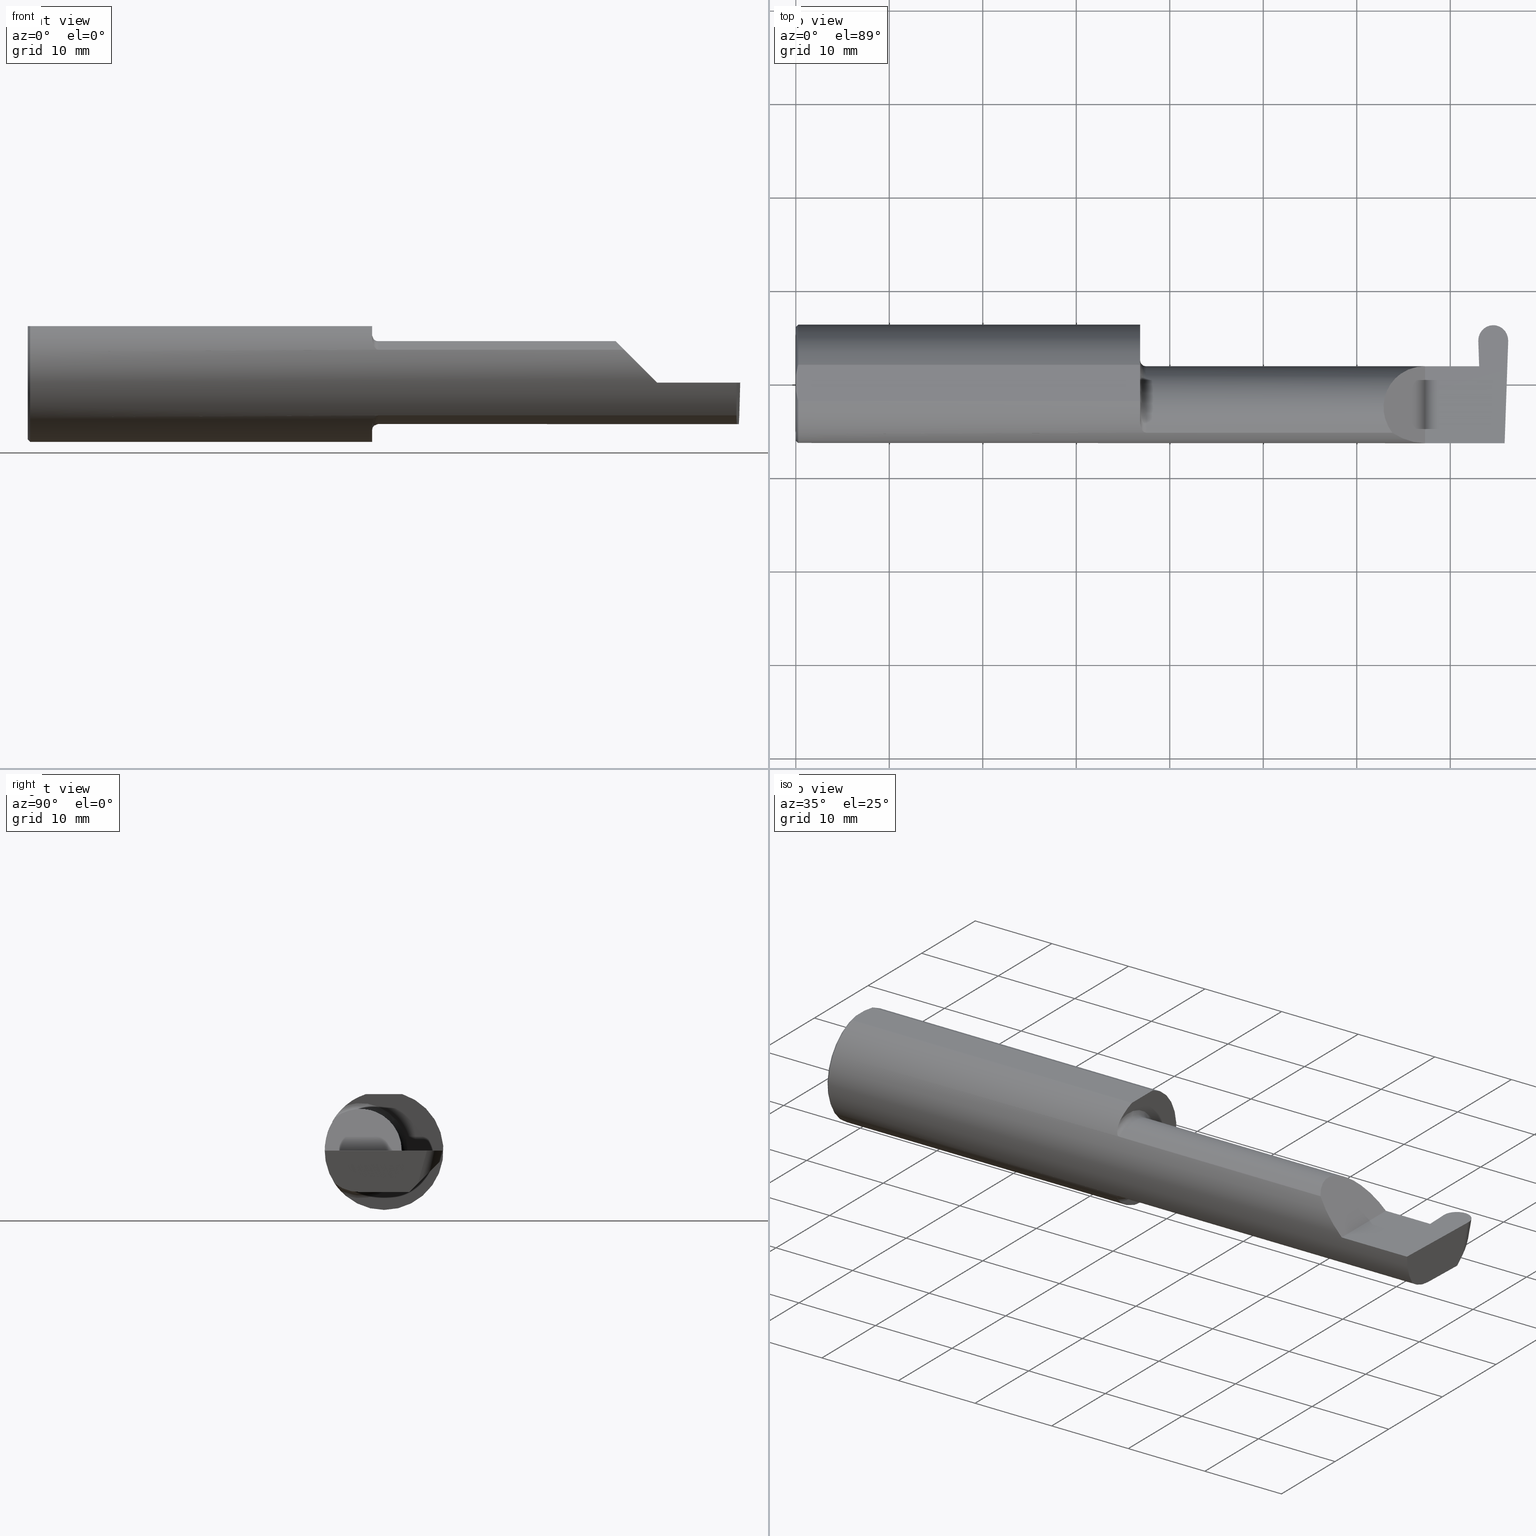
[diagram: canonical four-view strip — front | top / right | iso, engineering-drawing reading convention]
A machine part, canonical four-view strip (front | top / right | iso — engineering-drawing reading convention). The complete STEP part file that produces these views, byte-faithful:
ISO-10303-21;
HEADER;
FILE_DESCRIPTION (( 'STEP AP203' ),
    '1' );
FILE_NAME ('222482-GFR125-24.STEP',
    '2024-06-28T19:18:32',
    ( '' ),
    ( '' ),
    'SwSTEP 2.0',
    'SolidWorks 2024',
    '' );
FILE_SCHEMA (( 'CONFIG_CONTROL_DESIGN' ));
ENDSEC;

DATA;
#1 = CARTESIAN_POINT ( 'NONE',  ( 2.879499660824579976, 0.07056399972053264968, -0.1057442486376091589 ) ) ;
#2 = CARTESIAN_POINT ( 'NONE',  ( 2.935382123675520205, 0.1665992816037146218, -0.05720606541626471753 ) ) ;
#3 = ORIENTED_EDGE ( 'NONE', *, *, #646, .T. ) ;
#4 = DIRECTION ( 'NONE',  ( 0.000000000000000000, 0.000000000000000000, -1.000000000000000000 ) ) ;
#5 = DIRECTION ( 'NONE',  ( 0.000000000000000000, 0.000000000000000000, -1.000000000000000000 ) ) ;
#6 = ADVANCED_FACE ( 'NONE', ( #214 ), #466, .F. ) ;
#7 = VERTEX_POINT ( 'NONE', #416 ) ;
#8 = CARTESIAN_POINT ( 'NONE',  ( 1.474999999999999867, -0.2080850024789289709, 0.1382955322609668580 ) ) ;
#9 = AXIS2_PLACEMENT_3D ( 'NONE', #137, #246, #566 ) ;
#10 = CARTESIAN_POINT ( 'NONE',  ( 2.409263745716142768, -0.07597241004310682777, 0.2407362542838554220 ) ) ;
#11 = VERTEX_POINT ( 'NONE', #312 ) ;
#12 = CARTESIAN_POINT ( 'NONE',  ( 1.450000000000000178, -0.1616050818046604332, -0.1905487340154980169 ) ) ;
#13 = CARTESIAN_POINT ( 'NONE',  ( 2.936894315000000866, 0.2348176093011050958, -0.04600672784706324320 ) ) ;
#14 = ORIENTED_EDGE ( 'NONE', *, *, #464, .T. ) ;
#15 = CARTESIAN_POINT ( 'NONE',  ( 0.000000000000000000, 0.000000000000000000, 0.000000000000000000 ) ) ;
#16 = EDGE_CURVE ( 'NONE', #11, #535, #95, .T. ) ;
#17 = PLANE ( 'NONE',  #23 ) ;
#18 = CC_DESIGN_PERSON_AND_ORGANIZATION_ASSIGNMENT ( #468, #40, ( #485 ) ) ;
#19 = ORIENTED_EDGE ( 'NONE', *, *, #446, .T. ) ;
#20 = MANIFOLD_SOLID_BREP ( 'Radii', #326 ) ;
#21 = CARTESIAN_POINT ( 'NONE',  ( 1.458176740666625504, -0.1972027065478073882, -0.1535263573771914747 ) ) ;
#22 = CARTESIAN_POINT ( 'NONE',  ( 0.000000000000000000, 0.000000000000000000, 0.000000000000000000 ) ) ;
#23 = AXIS2_PLACEMENT_3D ( 'NONE', #404, #238, #24 ) ;
#24 = DIRECTION ( 'NONE',  ( -0.03489949670249505725, -0.9993908270190959842, 0.000000000000000000 ) ) ;
#25 = CC_DESIGN_PERSON_AND_ORGANIZATION_ASSIGNMENT ( #81, #554, ( #663 ) ) ;
#26 =( BOUNDED_CURVE ( )  B_SPLINE_CURVE ( 3, ( #378, #272, #57, #433 ),
 .UNSPECIFIED., .F., .F. ) 
 B_SPLINE_CURVE_WITH_KNOTS ( ( 4, 4 ),
 ( 4.712388980384689674, 5.298966915116347209 ),
 .UNSPECIFIED. ) 
 CURVE ( )  GEOMETRIC_REPRESENTATION_ITEM ( )  RATIONAL_B_SPLINE_CURVE ( ( 1.000000000000000000, 0.9715321379117538569, 0.9715321379117538569, 1.000000000000000000 ) ) 
 REPRESENTATION_ITEM ( '' )  );
#27 = LINE ( 'NONE', #287, #313 ) ;
#28 = DIRECTION ( 'NONE',  ( -1.000000000000000000, -5.995991820921354631E-17, -0.000000000000000000 ) ) ;
#29 = ADVANCED_FACE ( 'NONE', ( #308 ), #31, .F. ) ;
#30 = CARTESIAN_POINT ( 'NONE',  ( 0.000000000000000000, 0.000000000000000000, 0.000000000000000000 ) ) ;
#31 = PLANE ( 'NONE',  #210 ) ;
#32 = VECTOR ( 'NONE', #102, 39.37007874015748854 ) ;
#33 = VECTOR ( 'NONE', #491, 39.37007874015748143 ) ;
#34 = PLANE ( 'NONE',  #339 ) ;
#35 = DIRECTION ( 'NONE',  ( 0.000000000000000000, -0.7071067811865435759, -0.7071067811865514585 ) ) ;
#36 = SECURITY_CLASSIFICATION_LEVEL ( 'unclassified' ) ;
#37 = ADVANCED_FACE ( 'NONE', ( #420 ), #362, .F. ) ;
#38 = CARTESIAN_POINT ( 'NONE',  ( -0.002039370078740339320, 0.2471499999999999808, 0.000000000000000000 ) ) ;
#39 = CARTESIAN_POINT ( 'NONE',  ( 2.877587758332053269, 0.07414999999999977165, 0.000000000000000000 ) ) ;
#40 = PERSON_AND_ORGANIZATION_ROLE ( 'creator' ) ;
#41 = LINE ( 'NONE', #686, #281 ) ;
#42 = EDGE_LOOP ( 'NONE', ( #239, #111, #636 ) ) ;
#43 = AXIS2_PLACEMENT_3D ( 'NONE', #552, #58, #65 ) ;
#44 = EDGE_LOOP ( 'NONE', ( #226, #561, #417 ) ) ;
#45 = CC_DESIGN_APPROVAL ( #519, ( #203 ) ) ;
#46 = CARTESIAN_POINT ( 'NONE',  ( 2.872525856337140748, 0.2191039076196377999, 1.588360126375408623E-17 ) ) ;
#47 = EDGE_LOOP ( 'NONE', ( #54, #155, #474, #377, #99, #229 ) ) ;
#48 = CARTESIAN_POINT ( 'NONE',  ( 2.880805159919763270, -0.1008500000000000368, -0.1750000000000000444 ) ) ;
#49 = LINE ( 'NONE', #388, #556 ) ;
#50 = EDGE_CURVE ( 'NONE', #7, #259, #207, .T. ) ;
#51 = ORIENTED_EDGE ( 'NONE', *, *, #691, .F. ) ;
#52 = CARTESIAN_POINT ( 'NONE',  ( 3.402190948718818664, -0.1008499999999999674, -0.1750000000000000722 ) ) ;
#53 = CARTESIAN_POINT ( 'NONE',  ( 2.936894315000000422, 0.2425588618090795956, -0.01713436099308476498 ) ) ;
#54 = ORIENTED_EDGE ( 'NONE', *, *, #266, .T. ) ;
#55 = VECTOR ( 'NONE', #495, 39.37007874015748143 ) ;
#56 = VECTOR ( 'NONE', #520, 39.37007874015748854 ) ;
#57 = CARTESIAN_POINT ( 'NONE',  ( 2.552984868485332015, -0.2355204011147991883, 0.09701513151466749363 ) ) ;
#58 = DIRECTION ( 'NONE',  ( -1.000000000000000000, -5.995991820921354631E-17, -0.000000000000000000 ) ) ;
#59 = VERTEX_POINT ( 'NONE', #630 ) ;
#60 = CARTESIAN_POINT ( 'NONE',  ( 0.009999999999999856226, 0.07650098038587520299, 0.2378499999999998671 ) ) ;
#61 = EDGE_CURVE ( 'NONE', #11, #241, #405, .T. ) ;
#62 = DIRECTION ( 'NONE',  ( 0.000000000000000000, -1.000000000000000000, 0.000000000000000000 ) ) ;
#63 = VERTEX_POINT ( 'NONE', #690 ) ;
#64 = CARTESIAN_POINT ( 'NONE',  ( 2.881751263448093514, -2.813289441922686596, -0.1800126308514063134 ) ) ;
#65 = DIRECTION ( 'NONE',  ( 0.000000000000000000, -1.000000000000000000, 0.000000000000000000 ) ) ;
#66 = ORIENTED_EDGE ( 'NONE', *, *, #317, .T. ) ;
#67 = AXIS2_PLACEMENT_3D ( 'NONE', #305, #368, #587 ) ;
#68 = CARTESIAN_POINT ( 'NONE',  ( 1.462579853086618975, -0.2024300470081734638, -0.1464774911482685238 ) ) ;
#69 = VECTOR ( 'NONE', #142, 39.37007874015748143 ) ;
#70 = CARTESIAN_POINT ( 'NONE',  ( 2.999898068948996244, 0.1800238777770215015, 0.000000000000000000 ) ) ;
#71 = EDGE_CURVE ( 'NONE', #369, #575, #528, .T. ) ;
#72 = EDGE_LOOP ( 'NONE', ( #144, #334, #66, #300, #373, #482, #651, #612, #163, #202, #605, #255, #349 ) ) ;
#73 = DIRECTION ( 'NONE',  ( -0.03701744261649875939, -0.7066221440565400025, -0.7066221440565478851 ) ) ;
#74 = CARTESIAN_POINT ( 'NONE',  ( 2.984886542352623628, -0.2498499999999999888, 0.000000000000000000 ) ) ;
#75 = VERTEX_POINT ( 'NONE', #525 ) ;
#76 = EDGE_CURVE ( 'NONE', #550, #7, #634, .T. ) ;
#77 = APPROVAL_DATE_TIME ( #188, #519 ) ;
#78 = CARTESIAN_POINT ( 'NONE',  ( 2.873827072278243744, 0.1818419583544338691, 0.000000000000000000 ) ) ;
#79 = CARTESIAN_POINT ( 'NONE',  ( 1.458182335268384477, -0.1972192205116130859, 0.1535061413537210095 ) ) ;
#80 = APPROVAL_PERSON_ORGANIZATION ( #204, #290, #578 ) ;
#81 = PERSON_AND_ORGANIZATION ( #389, #693 ) ;
#82 = CARTESIAN_POINT ( 'NONE',  ( 2.879538164404315648, 0.1058243371481696893, -0.1750000000000001277 ) ) ;
#83 = EDGE_CURVE ( 'NONE', #274, #369, #513, .T. ) ;
#84 = APPROVAL_STATUS ( 'not_yet_approved' ) ;
#85 = CARTESIAN_POINT ( 'NONE',  ( 2.868840969551623932, 0.3100219863620841676, 0.02919764921391665435 ) ) ;
#86 = ORIENTED_EDGE ( 'NONE', *, *, #576, .T. ) ;
#87 = COORDINATED_UNIVERSAL_TIME_OFFSET ( 8, 0, .BEHIND. ) ;
#88 = CARTESIAN_POINT ( 'NONE',  ( 2.174394315000000244, -0.2080850024789289432, -0.1382955322609668858 ) ) ;
#89 = ORIENTED_EDGE ( 'NONE', *, *, #457, .T. ) ;
#90 = AXIS2_PLACEMENT_3D ( 'NONE', #180, #268, #601 ) ;
#91 = LOCAL_TIME ( 12, 18, 32.00000000000000000, #562 ) ;
#92 = DATE_AND_TIME ( #199, #473 ) ;
#93 = CC_DESIGN_DATE_AND_TIME_ASSIGNMENT ( #253, #632, ( #327 ) ) ;
#94 = FACE_OUTER_BOUND ( 'NONE', #42, .T. ) ;
#95 = LINE ( 'NONE', #521, #115 ) ;
#96 = APPROVAL_DATE_TIME ( #92, #290 ) ;
#97 = ADVANCED_FACE ( 'NONE', ( #423 ), #365, .F. ) ;
#98 = ORIENTED_EDGE ( 'NONE', *, *, #159, .T. ) ;
#99 = ORIENTED_EDGE ( 'NONE', *, *, #76, .T. ) ;
#100 = APPLICATION_CONTEXT ( 'configuration controlled 3d designs of mechanical parts and assemblies' ) ;
#101 = PLANE ( 'NONE',  #372 ) ;
#102 = DIRECTION ( 'NONE',  ( -0.02590004391968258463, -0.2587322210431824421, -0.9656017944882975268 ) ) ;
#103 = ORIENTED_EDGE ( 'NONE', *, *, #523, .F. ) ;
#104 = CONICAL_SURFACE ( 'NONE', #151, 0.2398500000000001742, 0.7853981633974466137 ) ;
#105 = FACE_OUTER_BOUND ( 'NONE', #286, .T. ) ;
#106 = VERTEX_POINT ( 'NONE', #221 ) ;
#107 =( BOUNDED_CURVE ( )  B_SPLINE_CURVE ( 3, ( #367, #695, #357, #153 ),
 .UNSPECIFIED., .F., .F. ) 
 B_SPLINE_CURVE_WITH_KNOTS ( ( 4, 4 ),
 ( 1.556556287886218692, 3.144255612008072021 ),
 .UNSPECIFIED. ) 
 CURVE ( )  GEOMETRIC_REPRESENTATION_ITEM ( )  RATIONAL_B_SPLINE_CURVE ( ( 1.000000000000000000, 0.8007369912750459395, 0.8007369912750459395, 1.000000000000000000 ) ) 
 REPRESENTATION_ITEM ( '' )  );
#108 = EDGE_LOOP ( 'NONE', ( #314, #471, #98, #599, #558 ) ) ;
#109 = DIRECTION ( 'NONE',  ( -0.000000000000000000, 1.000000000000000000, -0.000000000000000000 ) ) ;
#110 = CARTESIAN_POINT ( 'NONE',  ( 2.987538890366190802, -0.08637003105099157196, -0.1750000000000000722 ) ) ;
#111 = ORIENTED_EDGE ( 'NONE', *, *, #147, .T. ) ;
#112 = PLANE ( 'NONE',  #397 ) ;
#113 = CARTESIAN_POINT ( 'NONE',  ( 0.009999999999999856226, 0.000000000000000000, 0.000000000000000000 ) ) ;
#114 = ORIENTED_EDGE ( 'NONE', *, *, #464, .F. ) ;
#115 = VECTOR ( 'NONE', #409, 39.37007874015748143 ) ;
#116 = EDGE_CURVE ( 'NONE', #106, #424, #228, .T. ) ;
#117 = VECTOR ( 'NONE', #190, 39.37007874015748854 ) ;
#118 = CARTESIAN_POINT ( 'NONE',  ( 0.000000000000000000, 0.2498499999999998500, 0.2378499999999998671 ) ) ;
#119 = CARTESIAN_POINT ( 'NONE',  ( 2.511704467739032332, -0.2080850024789289432, 0.1382955322609668858 ) ) ;
#120 = ORIENTED_EDGE ( 'NONE', *, *, #193, .F. ) ;
#121 = ADVANCED_BREP_SHAPE_REPRESENTATION ( '222482-GFR125-24', ( #20, #211 ), #243 ) ;
#122 = DIRECTION ( 'NONE',  ( -1.000000000000000000, -0.000000000000000000, -0.000000000000000000 ) ) ;
#123 = LINE ( 'NONE', #230, #705 ) ;
#124 = EDGE_LOOP ( 'NONE', ( #608, #704, #342, #615 ) ) ;
#125 = CARTESIAN_POINT ( 'NONE',  ( 1.451385488563270432, -0.1808287530430325862, -0.1728790649396287071 ) ) ;
#126 = ADVANCED_FACE ( 'NONE', ( #165 ), #264, .T. ) ;
#127 = ORIENTED_EDGE ( 'NONE', *, *, #572, .F. ) ;
#128 =( BOUNDED_CURVE ( )  B_SPLINE_CURVE ( 3, ( #48, #370, #1, #480 ),
 .UNSPECIFIED., .F., .T. ) 
 B_SPLINE_CURVE_WITH_KNOTS ( ( 4, 4 ),
 ( 3.159045946109733105, 4.694935687864651541 ),
 .UNSPECIFIED. ) 
 CURVE ( )  GEOMETRIC_REPRESENTATION_ITEM ( )  RATIONAL_B_SPLINE_CURVE ( ( 1.000000000000000000, 0.8128932002257887035, 0.8128932002257887035, 1.000000000000000000 ) ) 
 REPRESENTATION_ITEM ( '' )  );
#129 = AXIS2_PLACEMENT_3D ( 'NONE', #549, #442, #62 ) ;
#130 = APPROVAL_STATUS ( 'not_yet_approved' ) ;
#131 = AXIS2_PLACEMENT_3D ( 'NONE', #176, #386, #606 ) ;
#132 = CARTESIAN_POINT ( 'NONE',  ( 0.000000000000000000, 0.03090954545120574992, 0.2378499999999998671 ) ) ;
#133 = EDGE_CURVE ( 'NONE', #575, #280, #660, .T. ) ;
#134 = VERTEX_POINT ( 'NONE', #438 ) ;
#135 = PERSON_AND_ORGANIZATION_ROLE ( 'creator' ) ;
#136 = DIRECTION ( 'NONE',  ( -0.0003154085283454420899, 0.9999999502587288980, -1.223178646569383192E-16 ) ) ;
#137 = CARTESIAN_POINT ( 'NONE',  ( 1.450000000000000178, 0.000000000000000000, 0.000000000000000000 ) ) ;
#138 = CARTESIAN_POINT ( 'NONE',  ( 2.936830367926423602, 0.1823443432594142322, 0.001555304651110661022 ) ) ;
#139 = EDGE_CURVE ( 'NONE', #396, #106, #611, .T. ) ;
#140 = CARTESIAN_POINT ( 'NONE',  ( 2.984591634083985756, -0.1771157075472506726, -0.1623092683844332140 ) ) ;
#141 = VECTOR ( 'NONE', #285, 39.37007874015748143 ) ;
#142 = DIRECTION ( 'NONE',  ( -0.000000000000000000, 1.000000000000000000, -0.000000000000000000 ) ) ;
#143 = ORIENTED_EDGE ( 'NONE', *, *, #470, .F. ) ;
#144 = ORIENTED_EDGE ( 'NONE', *, *, #497, .F. ) ;
#145 = DIRECTION ( 'NONE',  ( 0.000000000000000000, -0.2588190451025209615, -0.9659258262890682012 ) ) ;
#146 = ORIENTED_EDGE ( 'NONE', *, *, #376, .F. ) ;
#147 = EDGE_CURVE ( 'NONE', #575, #209, #49, .T. ) ;
#148 = DESIGN_CONTEXT ( 'detailed design', #100, 'design' ) ;
#149 = PLANE ( 'NONE',  #496 ) ;
#150 = CARTESIAN_POINT ( 'NONE',  ( 0.000000000000000000, 0.000000000000000000, 0.000000000000000000 ) ) ;
#151 = AXIS2_PLACEMENT_3D ( 'NONE', #645, #551, #164 ) ;
#152 = EDGE_CURVE ( 'NONE', #297, #673, #434, .T. ) ;
#153 = CARTESIAN_POINT ( 'NONE',  ( 2.936894315000000866, 0.2348176093011050958, -0.04600672784706324320 ) ) ;
#154 = DIRECTION ( 'NONE',  ( -0.01806954526206908801, 0.01744955702544859211, 0.9996844524616943506 ) ) ;
#155 = ORIENTED_EDGE ( 'NONE', *, *, #598, .T. ) ;
#156 = CARTESIAN_POINT ( 'NONE',  ( 0.000000000000000000, 0.000000000000000000, -0.2398500000000001742 ) ) ;
#157 = CARTESIAN_POINT ( 'NONE',  ( 2.877587758332053269, 0.07414999999999977165, 0.000000000000000000 ) ) ;
#158 = ORIENTED_EDGE ( 'NONE', *, *, #215, .T. ) ;
#159 = EDGE_CURVE ( 'NONE', #550, #355, #235, .T. ) ;
#160 = PLANE ( 'NONE',  #249 ) ;
#161 = EDGE_LOOP ( 'NONE', ( #236, #198, #571 ) ) ;
#162 = AXIS2_PLACEMENT_3D ( 'NONE', #22, #340, #293 ) ;
#163 = ORIENTED_EDGE ( 'NONE', *, *, #61, .T. ) ;
#164 = DIRECTION ( 'NONE',  ( 0.000000000000000000, 0.000000000000000000, -1.000000000000000000 ) ) ;
#165 = FACE_OUTER_BOUND ( 'NONE', #440, .T. ) ;
#166 = VERTEX_POINT ( 'NONE', #375 ) ;
#167 = CARTESIAN_POINT ( 'NONE',  ( 2.936894315000000866, 0.2348176093011050958, -0.04600672784706324320 ) ) ;
#168 = DIRECTION ( 'NONE',  ( -0.02590004391968258809, -0.2587322210431824976, -0.9656017944882975268 ) ) ;
#169 = EDGE_CURVE ( 'NONE', #432, #134, #379, .T. ) ;
#170 = ORIENTED_EDGE ( 'NONE', *, *, #116, .F. ) ;
#171 = DIRECTION ( 'NONE',  ( -0.7071067811865439090, 0.000000000000000000, -0.7071067811865511255 ) ) ;
#172 = DIRECTION ( 'NONE',  ( 0.000000000000000000, -1.000000000000000000, 0.000000000000000000 ) ) ;
#173 = ORIENTED_EDGE ( 'NONE', *, *, #133, .T. ) ;
#174 = AXIS2_PLACEMENT_3D ( 'NONE', #647, #481, #172 ) ;
#175 = CC_DESIGN_SECURITY_CLASSIFICATION ( #327, ( #485 ) ) ;
#176 = CARTESIAN_POINT ( 'NONE',  ( 1.450000000000000178, 0.2498499999999997945, 0.000000000000000000 ) ) ;
#177 = DIRECTION ( 'NONE',  ( 1.000000000000000000, -0.000000000000000000, -0.000000000000000000 ) ) ;
#178 = ORIENTED_EDGE ( 'NONE', *, *, #385, .F. ) ;
#179 = B_SPLINE_CURVE_WITH_KNOTS ( 'NONE', 3,
 ( #132, #348, #345, #289 ),
 .UNSPECIFIED., .F., .F.,
 ( 4, 4 ),
 ( 0.01593449416844770414, 0.01712021724825603733 ),
 .UNSPECIFIED. ) ;
#180 = CARTESIAN_POINT ( 'NONE',  ( 0.000000000000000000, 0.000000000000000000, 0.000000000000000000 ) ) ;
#181 = VERTEX_POINT ( 'NONE', #427 ) ;
#182 =( CONVERSION_BASED_UNIT ( 'INCH', #564 ) LENGTH_UNIT ( ) NAMED_UNIT ( #185 ) );
#183 = EDGE_CURVE ( 'NONE', #588, #429, #247, .T. ) ;
#184 = LINE ( 'NONE', #394, #282 ) ;
#185 = DIMENSIONAL_EXPONENTS ( 1.000000000000000000, 0.000000000000000000, 0.000000000000000000, 0.000000000000000000, 0.000000000000000000, 0.000000000000000000, 0.000000000000000000 ) ;
#186 = ORIENTED_EDGE ( 'NONE', *, *, #646, .F. ) ;
#187 = AXIS2_PLACEMENT_3D ( 'NONE', #639, #683, #628 ) ;
#188 = DATE_AND_TIME ( #668, #706 ) ;
#189 = VECTOR ( 'NONE', #689, 39.37007874015748143 ) ;
#190 = DIRECTION ( 'NONE',  ( 0.02590004391968258463, 0.2587322210431824421, 0.9656017944882975268 ) ) ;
#191 = DIRECTION ( 'NONE',  ( 0.000000000000000000, 0.9659258262890680902, -0.2588190451025209615 ) ) ;
#192 = LINE ( 'NONE', #624, #530 ) ;
#193 = EDGE_CURVE ( 'NONE', #241, #673, #291, .T. ) ;
#194 = DIRECTION ( 'NONE',  ( 1.000000000000000000, 0.000000000000000000, 0.000000000000000000 ) ) ;
#195 = CARTESIAN_POINT ( 'NONE',  ( 4.499279347985562423E-32, -0.2498499999999999610, 3.673940397442054938E-16 ) ) ;
#196 = CARTESIAN_POINT ( 'NONE',  ( -0.002039370078740339320, 0.1058243371481696476, -0.1750000000000001277 ) ) ;
#197 = AXIS2_PLACEMENT_3D ( 'NONE', #30, #248, #527 ) ;
#198 = ORIENTED_EDGE ( 'NONE', *, *, #76, .F. ) ;
#199 = CALENDAR_DATE ( 2024, 28, 6 ) ;
#200 = EDGE_CURVE ( 'NONE', #209, #369, #123, .T. ) ;
#201 = LINE ( 'NONE', #260, #69 ) ;
#202 = ORIENTED_EDGE ( 'NONE', *, *, #193, .T. ) ;
#203 = PRODUCT_DEFINITION ( 'UNKNOWN', '', #485, #148 ) ;
#204 = PERSON_AND_ORGANIZATION ( #389, #693 ) ;
#205 = FACE_OUTER_BOUND ( 'NONE', #124, .T. ) ;
#206 = ADVANCED_FACE ( 'NONE', ( #540 ), #658, .T. ) ;
#207 = LINE ( 'NONE', #157, #670 ) ;
#208 = FACE_OUTER_BOUND ( 'NONE', #595, .T. ) ;
#209 = VERTEX_POINT ( 'NONE', #333 ) ;
#210 = AXIS2_PLACEMENT_3D ( 'NONE', #580, #250, #35 ) ;
#211 = AXIS2_PLACEMENT_3D ( 'NONE', #15, #613, #194 ) ;
#212 = PERSON_AND_ORGANIZATION_ROLE ( 'classification_officer' ) ;
#213 = DIRECTION ( 'NONE',  ( -0.03489949670249371111, 0.9993908270190959842, 0.000000000000000000 ) ) ;
#214 = FACE_OUTER_BOUND ( 'NONE', #486, .T. ) ;
#215 = EDGE_CURVE ( 'NONE', #63, #583, #472, .T. ) ;
#216 = ORIENTED_EDGE ( 'NONE', *, *, #516, .T. ) ;
#217 = CARTESIAN_POINT ( 'NONE',  ( 2.873890561051005044, 0.1800238777770215848, 0.000000000000000000 ) ) ;
#218 = ORIENTED_EDGE ( 'NONE', *, *, #83, .T. ) ;
#219 = ORIENTED_EDGE ( 'NONE', *, *, #147, .F. ) ;
#220 = DIRECTION ( 'NONE',  ( 0.000000000000000000, 0.000000000000000000, 1.000000000000000000 ) ) ;
#221 = CARTESIAN_POINT ( 'NONE',  ( 2.650000000000000355, 0.07414999999999997982, 1.898202538678394994E-16 ) ) ;
#222 = ORIENTED_EDGE ( 'NONE', *, *, #71, .F. ) ;
#223 = DIRECTION ( 'NONE',  ( 1.000000000000000000, 0.000000000000000000, -0.000000000000000000 ) ) ;
#224 = ADVANCED_FACE ( 'NONE', ( #279 ), #709, .T. ) ;
#225 = DIRECTION ( 'NONE',  ( 0.000000000000000000, 0.9659258262890680902, -0.2588190451025209615 ) ) ;
#226 = ORIENTED_EDGE ( 'NONE', *, *, #139, .F. ) ;
#227 = CARTESIAN_POINT ( 'NONE',  ( 2.873878335184228305, 0.1801460098349875194, 0.0004558030455617943138 ) ) ;
#228 = LINE ( 'NONE', #276, #55 ) ;
#229 = ORIENTED_EDGE ( 'NONE', *, *, #50, .T. ) ;
#230 = CARTESIAN_POINT ( 'NONE',  ( -0.002039370078740339320, 0.2471499999999999808, 0.000000000000000000 ) ) ;
#231 = ORIENTED_EDGE ( 'NONE', *, *, #682, .T. ) ;
#232 = CIRCLE ( 'NONE', #9, 0.2498499999999999888 ) ;
#233 = CC_DESIGN_APPROVAL ( #395, ( #485 ) ) ;
#234 = CARTESIAN_POINT ( 'NONE',  ( 2.998974393477397804, 0.1959989092472247951, -0.08482542790094400875 ) ) ;
#235 = LINE ( 'NONE', #703, #350 ) ;
#236 = ORIENTED_EDGE ( 'NONE', *, *, #565, .T. ) ;
#237 = DIRECTION ( 'NONE',  ( 0.02590004391968223074, -0.2587322210431824976, -0.9656017944882975268 ) ) ;
#238 = DIRECTION ( 'NONE',  ( -0.9992386149554828290, 0.03489418134010775774, 0.01745240643728358798 ) ) ;
#239 = ORIENTED_EDGE ( 'NONE', *, *, #71, .T. ) ;
#240 = CARTESIAN_POINT ( 'NONE',  ( 2.983929579294953616, -0.2080850024789288599, -0.1382955322609668858 ) ) ;
#241 = VERTEX_POINT ( 'NONE', #431 ) ;
#242 = CYLINDRICAL_SURFACE ( 'NONE', #517, 0.06300000000000001432 ) ;
#243 =( GEOMETRIC_REPRESENTATION_CONTEXT ( 3 ) GLOBAL_UNCERTAINTY_ASSIGNED_CONTEXT ( ( #684 ) ) GLOBAL_UNIT_ASSIGNED_CONTEXT ( ( #182, #393, #398 ) ) REPRESENTATION_CONTEXT ( 'NONE', 'WORKASPACE' ) );
#244 = CARTESIAN_POINT ( 'NONE',  ( 2.866439859938323398, 0.07404339472834126079, -0.006107411922953013585 ) ) ;
#245 = EDGE_CURVE ( 'NONE', #63, #588, #656, .T. ) ;
#246 = DIRECTION ( 'NONE',  ( 1.000000000000000000, 5.995991820921354631E-17, 0.000000000000000000 ) ) ;
#247 = CIRCLE ( 'NONE', #129, 0.1750000000000000167 ) ;
#248 = DIRECTION ( 'NONE',  ( -1.000000000000000000, -0.000000000000000000, -0.000000000000000000 ) ) ;
#249 = AXIS2_PLACEMENT_3D ( 'NONE', #708, #171, #494 ) ;
#250 = DIRECTION ( 'NONE',  ( 0.000000000000000000, -0.7071067811865514585, 0.7071067811865435759 ) ) ;
#251 = CARTESIAN_POINT ( 'NONE',  ( 1.450000000000000178, -0.07650098038587527238, 0.2378499999999998671 ) ) ;
#252 = ORIENTED_EDGE ( 'NONE', *, *, #385, .T. ) ;
#253 = DATE_AND_TIME ( #518, #415 ) ;
#254 = LINE ( 'NONE', #88, #189 ) ;
#255 = ORIENTED_EDGE ( 'NONE', *, *, #288, .F. ) ;
#256 = LINE ( 'NONE', #156, #56 ) ;
#257 = ORIENTED_EDGE ( 'NONE', *, *, #169, .F. ) ;
#258 = EDGE_CURVE ( 'NONE', #553, #673, #179, .T. ) ;
#259 = VERTEX_POINT ( 'NONE', #567 ) ;
#260 = CARTESIAN_POINT ( 'NONE',  ( 2.650000000000000355, -0.2500000000000000555, 4.286263797015729199E-17 ) ) ;
#261 = CARTESIAN_POINT ( 'NONE',  ( 2.999898068948996244, 0.1800238777770215015, 0.000000000000000000 ) ) ;
#262 = ORIENTED_EDGE ( 'NONE', *, *, #691, .T. ) ;
#263 = CARTESIAN_POINT ( 'NONE',  ( 2.974284482021860576, 0.2341676052385947282, -0.04665673190957361077 ) ) ;
#264 = CYLINDRICAL_SURFACE ( 'NONE', #174, 0.1750000000000000444 ) ;
#265 = ORIENTED_EDGE ( 'NONE', *, *, #152, .T. ) ;
#266 = EDGE_CURVE ( 'NONE', #259, #309, #675, .T. ) ;
#267 = CARTESIAN_POINT ( 'NONE',  ( 2.996204691241262985, 0.1431283489340401394, -0.1376959882141292058 ) ) ;
#268 = DIRECTION ( 'NONE',  ( -1.000000000000000000, -0.000000000000000000, -0.000000000000000000 ) ) ;
#269 = APPROVAL_PERSON_ORGANIZATION ( #573, #395, #522 ) ;
#270 = ORIENTED_EDGE ( 'NONE', *, *, #623, .F. ) ;
#271 = EDGE_CURVE ( 'NONE', #7, #331, #192, .T. ) ;
#272 = CARTESIAN_POINT ( 'NONE',  ( 2.600434159100402987, -0.2498499999999999610, 0.04956584089959698708 ) ) ;
#273 = CARTESIAN_POINT ( 'NONE',  ( 2.936894315000000866, 0.2399798948975154222, -0.02675919653808110990 ) ) ;
#274 = VERTEX_POINT ( 'NONE', #70 ) ;
#275 = FACE_OUTER_BOUND ( 'NONE', #667, .T. ) ;
#276 = CARTESIAN_POINT ( 'NONE',  ( 1.450000000000000178, 0.07414999999999991043, 1.898202538678394994E-16 ) ) ;
#277 = ORIENTED_EDGE ( 'NONE', *, *, #572, .T. ) ;
#278 = CARTESIAN_POINT ( 'NONE',  ( 2.877587758332053269, 0.07414999999999977165, 0.000000000000000000 ) ) ;
#279 = FACE_OUTER_BOUND ( 'NONE', #338, .T. ) ;
#280 = VERTEX_POINT ( 'NONE', #13 ) ;
#281 = VECTOR ( 'NONE', #626, 39.37007874015748143 ) ;
#282 = VECTOR ( 'NONE', #136, 39.37007874015748854 ) ;
#283 = CARTESIAN_POINT ( 'NONE',  ( 1.474999999999999867, -0.2080850024789289709, 0.1382955322609668580 ) ) ;
#284 = ORIENTED_EDGE ( 'NONE', *, *, #139, .T. ) ;
#285 = DIRECTION ( 'NONE',  ( -0.03489949670249371805, 0.9993908270190959842, -0.000000000000000000 ) ) ;
#286 = EDGE_LOOP ( 'NONE', ( #366, #328, #265, #384, #127, #443 ) ) ;
#287 = CARTESIAN_POINT ( 'NONE',  ( 2.174394315000000244, -0.2080850024789289432, 0.1382955322609668858 ) ) ;
#288 = EDGE_CURVE ( 'NONE', #583, #297, #232, .T. ) ;
#289 = CARTESIAN_POINT ( 'NONE',  ( 0.009999999999999856226, 0.07650098038587520299, 0.2378499999999998671 ) ) ;
#290 = APPROVAL ( #84, 'UNSPECIFIED' ) ;
#291 = CIRCLE ( 'NONE', #692, 0.2498499999999999888 ) ;
#292 = AXIS2_PLACEMENT_3D ( 'NONE', #655, #600, #4 ) ;
#293 = DIRECTION ( 'NONE',  ( 0.000000000000000000, 0.000000000000000000, -1.000000000000000000 ) ) ;
#294 = ORIENTED_EDGE ( 'NONE', *, *, #258, .T. ) ;
#295 = CARTESIAN_POINT ( 'NONE',  ( 1.449999999999999734, -0.1716188362992554506, -0.1820560320165479640 ) ) ;
#296 = CARTESIAN_POINT ( 'NONE',  ( 2.985664738015655129, -0.1400387324517229082, -0.1750000000000000999 ) ) ;
#297 = VERTEX_POINT ( 'NONE', #450 ) ;
#298 = CALENDAR_DATE ( 2024, 28, 6 ) ;
#299 = CARTESIAN_POINT ( 'NONE',  ( 2.866439859938323398, 0.07404339472834126079, -0.006107411922953013585 ) ) ;
#300 = ORIENTED_EDGE ( 'NONE', *, *, #547, .T. ) ;
#301 = APPROVAL_STATUS ( 'not_yet_approved' ) ;
#302 = CARTESIAN_POINT ( 'NONE',  ( 2.936434725234540632, 0.2471499999999999808, 0.000000000000000000 ) ) ;
#303 = DIRECTION ( 'NONE',  ( 0.000000000000000000, 0.000000000000000000, -1.000000000000000000 ) ) ;
#304 = SHAPE_DEFINITION_REPRESENTATION ( #335, #121 ) ;
#305 = CARTESIAN_POINT ( 'NONE',  ( 0.009999999999999856226, 0.000000000000000000, 0.000000000000000000 ) ) ;
#306 = EDGE_CURVE ( 'NONE', #355, #432, #406, .T. ) ;
#307 = CARTESIAN_POINT ( 'NONE',  ( 0.009999999999999856226, -0.07650098038587520299, 0.2378499999999998671 ) ) ;
#308 = FACE_OUTER_BOUND ( 'NONE', #661, .T. ) ;
#309 = VERTEX_POINT ( 'NONE', #504 ) ;
#310 = PERSON_AND_ORGANIZATION_ROLE ( 'design_supplier' ) ;
#311 = CARTESIAN_POINT ( 'NONE',  ( 2.994250465595685640, 0.1058243371481696615, -0.1750000000000001277 ) ) ;
#312 = CARTESIAN_POINT ( 'NONE',  ( 0.009999999999999856226, -0.07650098038587520299, 0.2378499999999998671 ) ) ;
#313 = VECTOR ( 'NONE', #403, 39.37007874015748143 ) ;
#314 = ORIENTED_EDGE ( 'NONE', *, *, #635, .T. ) ;
#315 = DIRECTION ( 'NONE',  ( 0.000000000000000000, 1.000000000000000000, 0.000000000000000000 ) ) ;
#316 = ORIENTED_EDGE ( 'NONE', *, *, #435, .F. ) ;
#317 = EDGE_CURVE ( 'NONE', #166, #75, #337, .T. ) ;
#318 = VERTEX_POINT ( 'NONE', #669 ) ;
#319 =( BOUNDED_CURVE ( )  B_SPLINE_CURVE ( 3, ( #167, #263, #234, #267 ),
 .UNSPECIFIED., .F., .F. ) 
 B_SPLINE_CURVE_WITH_KNOTS ( ( 4, 4 ),
 ( 3.138929695171530643, 4.726629019293367762 ),
 .UNSPECIFIED. ) 
 CURVE ( )  GEOMETRIC_REPRESENTATION_ITEM ( )  RATIONAL_B_SPLINE_CURVE ( ( 1.000000000000000000, 0.8007369912750498253, 0.8007369912750498253, 1.000000000000000000 ) ) 
 REPRESENTATION_ITEM ( '' )  );
#320 = FACE_OUTER_BOUND ( 'NONE', #44, .T. ) ;
#321 = DIRECTION ( 'NONE',  ( 1.000000000000000000, 0.000000000000000000, 0.000000000000000000 ) ) ;
#322 = ADVANCED_FACE ( 'NONE', ( #666 ), #680, .T. ) ;
#323 = ORIENTED_EDGE ( 'NONE', *, *, #497, .T. ) ;
#324 = DIRECTION ( 'NONE',  ( 0.02590004391968223421, -0.2587322210431824421, -0.9656017944882974158 ) ) ;
#325 = CARTESIAN_POINT ( 'NONE',  ( 1.450000000000000622, -0.1665641037263010382, 0.1863429692936361681 ) ) ;
#326 = CLOSED_SHELL ( 'NONE', ( #322, #412, #206, #585, #37, #618, #6, #627, #425, #126, #676, #97, #534, #29, #488, #341, #671, #224, #707 ) ) ;
#327 = SECURITY_CLASSIFICATION ( '', '', #36 ) ;
#328 = ORIENTED_EDGE ( 'NONE', *, *, #623, .T. ) ;
#329 = CARTESIAN_POINT ( 'NONE',  ( 3.501298404146671484, 0.2498499999999998500, 0.2378499999999998671 ) ) ;
#330 = DIRECTION ( 'NONE',  ( 0.000000000000000000, -1.000000000000000000, 1.223176342469858371E-16 ) ) ;
#331 = VERTEX_POINT ( 'NONE', #244 ) ;
#332 = PLANE ( 'NONE',  #131 ) ;
#333 = CARTESIAN_POINT ( 'NONE',  ( 2.936434725234540632, 0.2471499999999999808, 0.000000000000000000 ) ) ;
#334 = ORIENTED_EDGE ( 'NONE', *, *, #376, .T. ) ;
#335 = PRODUCT_DEFINITION_SHAPE ( 'NONE', 'NONE',  #203 ) ;
#336 = APPLICATION_PROTOCOL_DEFINITION ( 'international standard', 'config_control_design', 1994, #569 ) ;
#337 = LINE ( 'NONE', #195, #622 ) ;
#338 = EDGE_LOOP ( 'NONE', ( #178, #602, #462, #222, #643 ) ) ;
#339 = AXIS2_PLACEMENT_3D ( 'NONE', #38, #586, #145 ) ;
#340 = DIRECTION ( 'NONE',  ( 1.000000000000000000, 0.000000000000000000, 0.000000000000000000 ) ) ;
#341 = ADVANCED_FACE ( 'NONE', ( #509 ), #17, .F. ) ;
#342 = ORIENTED_EDGE ( 'NONE', *, *, #701, .T. ) ;
#343 = CC_DESIGN_PERSON_AND_ORGANIZATION_ASSIGNMENT ( #526, #212, ( #327 ) ) ;
#344 = PERSON_AND_ORGANIZATION ( #389, #693 ) ;
#345 = CARTESIAN_POINT ( 'NONE',  ( 0.005466242398876384675, 0.06169385855649840017, 0.2378499999999998671 ) ) ;
#346 = EDGE_CURVE ( 'NONE', #181, #134, #592, .T. ) ;
#347 = FACE_OUTER_BOUND ( 'NONE', #479, .T. ) ;
#348 = CARTESIAN_POINT ( 'NONE',  ( 0.002005502345409059580, 0.04647171987093979412, 0.2378499999999998671 ) ) ;
#349 = ORIENTED_EDGE ( 'NONE', *, *, #701, .F. ) ;
#350 = VECTOR ( 'NONE', #382, 39.37007874015748854 ) ;
#351 =( LENGTH_UNIT ( ) NAMED_UNIT ( * ) SI_UNIT ( $, .METRE. ) );
#352 = CARTESIAN_POINT ( 'NONE',  ( 2.987033238708274752, -0.1008499999999999674, -0.1750000000000000722 ) ) ;
#353 = B_SPLINE_CURVE_WITH_KNOTS ( 'NONE', 3,
 ( #441, #445, #454, #401, #620, #559, #68, #21, #609, #125, #295, #12 ),
 .UNSPECIFIED., .F., .F.,
 ( 4, 2, 2, 2, 2, 4 ),
 ( 1.964491429041408615E-07, 0.0001260981470478281219, 0.0002519998449527520641, 0.0005038032407626139887, 0.001007410032382337946, 0.002014623615621791066 ),
 .UNSPECIFIED. ) ;
#354 = DIRECTION ( 'NONE',  ( -1.000000000000000000, -5.995991820921354631E-17, -0.000000000000000000 ) ) ;
#355 = VERTEX_POINT ( 'NONE', #82 ) ;
#356 = DATE_TIME_ROLE ( 'creation_date' ) ;
#357 = CARTESIAN_POINT ( 'NONE',  ( 2.899504147978140267, 0.2341676052385956164, -0.04665673190957269484 ) ) ;
#358 = ORIENTED_EDGE ( 'NONE', *, *, #116, .T. ) ;
#359 = VECTOR ( 'NONE', #154, 39.37007874015748143 ) ;
#360 = CARTESIAN_POINT ( 'NONE',  ( 2.877587758332053269, 0.07414999999999977165, 0.000000000000000000 ) ) ;
#361 = LOCAL_TIME ( 12, 18, 32.00000000000000000, #418 ) ;
#362 = PLANE ( 'NONE',  #187 ) ;
#363 = EDGE_CURVE ( 'NONE', #696, #550, #184, .T. ) ;
#364 = LINE ( 'NONE', #85, #557 ) ;
#365 = PLANE ( 'NONE',  #459 ) ;
#366 = ORIENTED_EDGE ( 'NONE', *, *, #16, .T. ) ;
#367 = CARTESIAN_POINT ( 'NONE',  ( 2.877583938758737858, 0.1431283489340402504, -0.1376959882141291225 ) ) ;
#368 = DIRECTION ( 'NONE',  ( 1.000000000000000000, 0.000000000000000000, 0.000000000000000000 ) ) ;
#369 = VERTEX_POINT ( 'NONE', #455 ) ;
#370 = CARTESIAN_POINT ( 'NONE',  ( 2.880773714454435197, -0.001152430219572236555, -0.1750000000000000722 ) ) ;
#371 = ORIENTED_EDGE ( 'NONE', *, *, #542, .T. ) ;
#372 = AXIS2_PLACEMENT_3D ( 'NONE', #360, #461, #422 ) ;
#373 = ORIENTED_EDGE ( 'NONE', *, *, #682, .F. ) ;
#374 = LINE ( 'NONE', #702, #33 ) ;
#375 = CARTESIAN_POINT ( 'NONE',  ( 2.984886542352623628, -0.2498499999999999888, 0.000000000000000000 ) ) ;
#376 = EDGE_CURVE ( 'NONE', #181, #166, #463, .T. ) ;
#377 = ORIENTED_EDGE ( 'NONE', *, *, #159, .F. ) ;
#378 = CARTESIAN_POINT ( 'NONE',  ( 2.650000000000000355, -0.2498499999999999610, 4.286263797015729199E-17 ) ) ;
#379 = LINE ( 'NONE', #110, #604 ) ;
#380 = ORIENTED_EDGE ( 'NONE', *, *, #502, .F. ) ;
#381 = PLANE ( 'NONE',  #644 ) ;
#382 = DIRECTION ( 'NONE',  ( -0.03489949670249371111, 0.9993908270190959842, -1.222058880457094394E-16 ) ) ;
#383 = APPROVAL_PERSON_ORGANIZATION ( #344, #519, #511 ) ;
#384 = ORIENTED_EDGE ( 'NONE', *, *, #258, .F. ) ;
#385 = EDGE_CURVE ( 'NONE', #59, #274, #399, .T. ) ;
#386 = DIRECTION ( 'NONE',  ( 1.000000000000000000, 5.995991820921354631E-17, 0.000000000000000000 ) ) ;
#387 = PRODUCT_RELATED_PRODUCT_CATEGORY ( 'detail', '', ( #663 ) ) ;
#388 = CARTESIAN_POINT ( 'NONE',  ( 2.934463560741512822, 0.2668412317563639835, 0.07348867737836418945 ) ) ;
#389 = PERSON ( 'UNSPECIFIED', 'UNSPECIFIED', 'UNSPECIFIED', ('UNSPECIFIED'), ('UNSPECIFIED'), ('UNSPECIFIED') ) ;
#390 = ORIENTED_EDGE ( 'NONE', *, *, #598, .F. ) ;
#391 = CARTESIAN_POINT ( 'NONE',  ( 2.936894315000000866, 0.2373994449183843558, -0.03638343994947537685 ) ) ;
#392 = ORIENTED_EDGE ( 'NONE', *, *, #565, .F. ) ;
#393 =( NAMED_UNIT ( * ) PLANE_ANGLE_UNIT ( ) SI_UNIT ( $, .RADIAN. ) );
#394 = CARTESIAN_POINT ( 'NONE',  ( 2.880805211788545428, -0.1010144495161653666, -0.1750000000000000722 ) ) ;
#395 = APPROVAL ( #301, 'UNSPECIFIED' ) ;
#396 = VERTEX_POINT ( 'NONE', #617 ) ;
#397 = AXIS2_PLACEMENT_3D ( 'NONE', #64, #543, #536 ) ;
#398 =( NAMED_UNIT ( * ) SI_UNIT ( $, .STERADIAN. ) SOLID_ANGLE_UNIT ( ) );
#399 = LINE ( 'NONE', #614, #117 ) ;
#400 = EDGE_CURVE ( 'NONE', #355, #515, #364, .T. ) ;
#401 = CARTESIAN_POINT ( 'NONE',  ( 1.468863362722770294, -0.2068301641248769251, -0.1401678546132361924 ) ) ;
#402 = CARTESIAN_POINT ( 'NONE',  ( 1.473329956043142319, -0.2080850024798589770, 0.1382955322595676717 ) ) ;
#403 = DIRECTION ( 'NONE',  ( 1.000000000000000000, 5.995991820921354631E-17, 0.000000000000000000 ) ) ;
#404 = CARTESIAN_POINT ( 'NONE',  ( 2.999961557721757099, 0.1818419583544338969, 0.000000000000000000 ) ) ;
#405 = CIRCLE ( 'NONE', #67, 0.2498499999999999888 ) ;
#406 = LINE ( 'NONE', #196, #451 ) ;
#407 = ORIENTED_EDGE ( 'NONE', *, *, #662, .T. ) ;
#408 = CARTESIAN_POINT ( 'NONE',  ( 2.898657552142794636, 0.2471500000000000918, 1.268339150128550293E-17 ) ) ;
#409 = DIRECTION ( 'NONE',  ( 1.000000000000000000, 0.000000000000000000, 0.000000000000000000 ) ) ;
#410 = FACE_OUTER_BOUND ( 'NONE', #47, .T. ) ;
#411 = DIRECTION ( 'NONE',  ( -0.01806954526206908801, 0.01744955702544859211, 0.9996844524616943506 ) ) ;
#412 = ADVANCED_FACE ( 'NONE', ( #208 ), #101, .F. ) ;
#413 = AXIS2_PLACEMENT_3D ( 'NONE', #150, #687, #303 ) ;
#414 = CARTESIAN_POINT ( 'NONE',  ( 0.000000000000000000, 0.000000000000000000, -0.2398500000000001742 ) ) ;
#415 = LOCAL_TIME ( 12, 18, 32.00000000000000000, #87 ) ;
#416 = CARTESIAN_POINT ( 'NONE',  ( 2.877698151322465314, 0.07404339472834124691, -0.006107411922953761250 ) ) ;
#417 = ORIENTED_EDGE ( 'NONE', *, *, #435, .T. ) ;
#418 = COORDINATED_UNIVERSAL_TIME_OFFSET ( 8, 0, .BEHIND. ) ;
#419 = DIRECTION ( 'NONE',  ( 5.995991820921354631E-17, -1.000000000000000000, 0.000000000000000000 ) ) ;
#420 = FACE_OUTER_BOUND ( 'NONE', #529, .T. ) ;
#421 = EDGE_LOOP ( 'NONE', ( #114, #505, #493, #19 ) ) ;
#422 = DIRECTION ( 'NONE',  ( 0.000000000000000000, -0.01745240643728358451, -0.9998476951563912696 ) ) ;
#423 = FACE_OUTER_BOUND ( 'NONE', #108, .T. ) ;
#424 = VERTEX_POINT ( 'NONE', #477 ) ;
#425 = ADVANCED_FACE ( 'NONE', ( #205 ), #453, .F. ) ;
#426 = FACE_OUTER_BOUND ( 'NONE', #594, .T. ) ;
#427 = CARTESIAN_POINT ( 'NONE',  ( 2.983929579294953616, -0.2080850024789288599, -0.1382955322609668858 ) ) ;
#428 = AXIS2_PLACEMENT_3D ( 'NONE', #590, #548, #315 ) ;
#429 = VERTEX_POINT ( 'NONE', #574 ) ;
#430 = FACE_OUTER_BOUND ( 'NONE', #161, .T. ) ;
#431 = CARTESIAN_POINT ( 'NONE',  ( 0.009999999999999856226, 0.000000000000000000, -0.2498499999999999888 ) ) ;
#432 = VERTEX_POINT ( 'NONE', #311 ) ;
#433 = CARTESIAN_POINT ( 'NONE',  ( 2.511704467739032332, -0.2080850024789289432, 0.1382955322609668858 ) ) ;
#434 = LINE ( 'NONE', #484, #657 ) ;
#435 = EDGE_CURVE ( 'NONE', #75, #106, #201, .T. ) ;
#436 = ORIENTED_EDGE ( 'NONE', *, *, #183, .F. ) ;
#437 = DIRECTION ( 'NONE',  ( 1.000000000000000000, -0.000000000000000000, -0.000000000000000000 ) ) ;
#438 = CARTESIAN_POINT ( 'NONE',  ( 2.987033238708274752, -0.1008499999999999674, -0.1750000000000000722 ) ) ;
#439 = CC_DESIGN_APPROVAL ( #290, ( #327 ) ) ;
#440 = EDGE_LOOP ( 'NONE', ( #323, #436, #231, #284, #358, #700, #648, #392, #665, #710 ) ) ;
#441 = CARTESIAN_POINT ( 'NONE',  ( 1.474999999999999867, -0.2080850024789289987, -0.1382955322609668025 ) ) ;
#442 = DIRECTION ( 'NONE',  ( -1.000000000000000000, -5.995991820921354631E-17, -0.000000000000000000 ) ) ;
#443 = ORIENTED_EDGE ( 'NONE', *, *, #446, .F. ) ;
#444 = B_SPLINE_CURVE_WITH_KNOTS ( 'NONE', 3,
 ( #307, #531, #698, #579 ),
 .UNSPECIFIED., .F., .F.,
 ( 4, 4 ),
 ( 0.01317593029100230795, 0.01435802289191462008 ),
 .UNSPECIFIED. ) ;
#445 = CARTESIAN_POINT ( 'NONE',  ( 1.473318040126429196, -0.2080850024789288599, -0.1382955322609669413 ) ) ;
#446 = EDGE_CURVE ( 'NONE', #11, #318, #444, .T. ) ;
#447 = CARTESIAN_POINT ( 'NONE',  ( 2.983929579294953616, -0.2080850024789288599, -0.1382955322609668858 ) ) ;
#448 = ORIENTED_EDGE ( 'NONE', *, *, #576, .F. ) ;
#449 = APPLICATION_PROTOCOL_DEFINITION ( 'international standard', 'config_control_design', 1994, #100 ) ;
#450 = CARTESIAN_POINT ( 'NONE',  ( 1.450000000000000178, 0.07650098038587520299, 0.2378499999999998671 ) ) ;
#451 = VECTOR ( 'NONE', #679, 39.37007874015748143 ) ;
#452 = ORIENTED_EDGE ( 'NONE', *, *, #317, .F. ) ;
#453 = TOROIDAL_SURFACE ( 'NONE', #589, 0.1999999999999999556, 0.02499999999999994241 ) ;
#454 = CARTESIAN_POINT ( 'NONE',  ( 1.471700027347579320, -0.2077785947292767332, -0.1387580622202826963 ) ) ;
#455 = CARTESIAN_POINT ( 'NONE',  ( 2.937353904765460211, 0.2471499999999999808, 0.000000000000000000 ) ) ;
#456 = MECHANICAL_CONTEXT ( 'NONE', #569, 'mechanical' ) ;
#457 = EDGE_CURVE ( 'NONE', #331, #424, #593, .T. ) ;
#458 = CARTESIAN_POINT ( 'NONE',  ( 2.983692505346974944, -0.2355204011147991883, -0.09701513151466779894 ) ) ;
#459 = AXIS2_PLACEMENT_3D ( 'NONE', #642, #653, #330 ) ;
#460 = CIRCLE ( 'NONE', #197, 0.2398500000000001742 ) ;
#461 = DIRECTION ( 'NONE',  ( 0.000000000000000000, -0.9998476951563912696, 0.01745240643728358451 ) ) ;
#462 = ORIENTED_EDGE ( 'NONE', *, *, #133, .F. ) ;
#463 =( BOUNDED_CURVE ( )  B_SPLINE_CURVE ( 3, ( #240, #458, #560, #74 ),
 .UNSPECIFIED., .F., .T. ) 
 B_SPLINE_CURVE_WITH_KNOTS ( ( 4, 4 ),
 ( 6.160376845738953833, 6.746954780470613144 ),
 .UNSPECIFIED. ) 
 CURVE ( )  GEOMETRIC_REPRESENTATION_ITEM ( )  RATIONAL_B_SPLINE_CURVE ( ( 1.000000000000000000, 0.9715321379117536349, 0.9715321379117536349, 1.000000000000000000 ) ) 
 REPRESENTATION_ITEM ( '' )  );
#464 = EDGE_CURVE ( 'NONE', #510, #318, #460, .T. ) ;
#465 = CARTESIAN_POINT ( 'NONE',  ( 2.866475395028876161, 0.07407892981889409312, -0.004071607948635345281 ) ) ;
#466 = PLANE ( 'NONE',  #413 ) ;
#467 = CC_DESIGN_PERSON_AND_ORGANIZATION_ASSIGNMENT ( #685, #310, ( #485 ) ) ;
#468 = PERSON_AND_ORGANIZATION ( #389, #693 ) ;
#469 = DIRECTION ( 'NONE',  ( 0.9992386149554828290, 0.03489418134010641159, 0.01745240643728358798 ) ) ;
#470 = EDGE_CURVE ( 'NONE', #274, #166, #41, .T. ) ;
#471 = ORIENTED_EDGE ( 'NONE', *, *, #363, .T. ) ;
#472 = CIRCLE ( 'NONE', #43, 0.1999999999999999556 ) ;
#473 = LOCAL_TIME ( 12, 18, 32.00000000000000000, #584 ) ;
#474 = ORIENTED_EDGE ( 'NONE', *, *, #400, .F. ) ;
#475 = ORIENTED_EDGE ( 'NONE', *, *, #470, .T. ) ;
#476 = CC_DESIGN_DATE_AND_TIME_ASSIGNMENT ( #694, #356, ( #203 ) ) ;
#477 = CARTESIAN_POINT ( 'NONE',  ( 2.866546465209982131, 0.07414999999999977165, 0.000000000000000000 ) ) ;
#478 = CARTESIAN_POINT ( 'NONE',  ( 3.001262773662860095, 0.2191039076196378277, -7.880140344815818546E-18 ) ) ;
#479 = EDGE_LOOP ( 'NONE', ( #380, #219, #173, #697, #390 ) ) ;
#480 = CARTESIAN_POINT ( 'NONE',  ( 2.877698151322465314, 0.07404339472834124691, -0.006107411922953761250 ) ) ;
#481 = DIRECTION ( 'NONE',  ( -1.000000000000000000, -5.995991820921354631E-17, -0.000000000000000000 ) ) ;
#482 = ORIENTED_EDGE ( 'NONE', *, *, #245, .F. ) ;
#483 = CARTESIAN_POINT ( 'NONE',  ( 2.936894315000000422, 0.2425588618090795956, -0.01713436099308476498 ) ) ;
#484 = CARTESIAN_POINT ( 'NONE',  ( 0.000000000000000000, 0.07650098038587520299, 0.2378499999999998671 ) ) ;
#485 = PRODUCT_DEFINITION_FORMATION_WITH_SPECIFIED_SOURCE ( 'ANY', '', #663, .NOT_KNOWN. ) ;
#486 = EDGE_LOOP ( 'NONE', ( #277, #3, #14 ) ) ;
#487 = CARTESIAN_POINT ( 'NONE',  ( 2.880750926882964524, 0.07109536363756167876, -0.1750000000000000722 ) ) ;
#488 = ADVANCED_FACE ( 'NONE', ( #410 ), #149, .F. ) ;
#489 = CARTESIAN_POINT ( 'NONE',  ( 1.451849548162864600, -0.1805300287242673496, 0.1728462070311780896 ) ) ;
#490 = ORIENTED_EDGE ( 'NONE', *, *, #502, .T. ) ;
#491 = DIRECTION ( 'NONE',  ( -5.995991820921354631E-17, 1.000000000000000000, 0.000000000000000000 ) ) ;
#492 = CARTESIAN_POINT ( 'NONE',  ( 2.650000000000000355, 0.07414999999999997982, 1.898202538678394994E-16 ) ) ;
#493 = ORIENTED_EDGE ( 'NONE', *, *, #61, .F. ) ;
#494 = DIRECTION ( 'NONE',  ( -0.7071067811865511255, 0.000000000000000000, 0.7071067811865439090 ) ) ;
#495 = DIRECTION ( 'NONE',  ( 1.000000000000000000, 5.995991820921354631E-17, 0.000000000000000000 ) ) ;
#496 = AXIS2_PLACEMENT_3D ( 'NONE', #524, #469, #213 ) ;
#497 = EDGE_CURVE ( 'NONE', #181, #429, #254, .T. ) ;
#498 = EDGE_LOOP ( 'NONE', ( #51, #252, #475, #146, #625, #257 ) ) ;
#499 = CARTESIAN_POINT ( 'NONE',  ( 2.996893271351730004, 0.1562725836412660607, -0.1245517535069031456 ) ) ;
#500 = CARTESIAN_POINT ( 'NONE',  ( 1.464343523383978996, -0.2041337200786082218, 0.1440846171672512943 ) ) ;
#501 = ORIENTED_EDGE ( 'NONE', *, *, #306, .F. ) ;
#502 = EDGE_CURVE ( 'NONE', #209, #309, #681, .T. ) ;
#503 = COORDINATED_UNIVERSAL_TIME_OFFSET ( 8, 0, .BEHIND. ) ;
#504 = CARTESIAN_POINT ( 'NONE',  ( 2.873890561051005044, 0.1800238777770215848, 0.000000000000000000 ) ) ;
#505 = ORIENTED_EDGE ( 'NONE', *, *, #523, .T. ) ;
#506 = CARTESIAN_POINT ( 'NONE',  ( 2.880805159919763270, -0.1008500000000000368, -0.1750000000000000444 ) ) ;
#507 = CARTESIAN_POINT ( 'NONE',  ( 1.456159563508734101, -0.1933019864360848994, 0.1584298865564832681 ) ) ;
#508 = CIRCLE ( 'NONE', #292, 0.2398500000000001742 ) ;
#509 = FACE_OUTER_BOUND ( 'NONE', #498, .T. ) ;
#510 = VERTEX_POINT ( 'NONE', #414 ) ;
#511 = APPROVAL_ROLE ( '' ) ;
#512 = CARTESIAN_POINT ( 'NONE',  ( 1.452968662030528879, -0.1849684355203377595, 0.1680843977756267815 ) ) ;
#513 =( BOUNDED_CURVE ( )  B_SPLINE_CURVE ( 3, ( #261, #478, #582, #699 ),
 .UNSPECIFIED., .F., .T. ) 
 B_SPLINE_CURVE_WITH_KNOTS ( ( 4, 4 ),
 ( 1.637964922114650168, 3.237953570749840804 ),
 .UNSPECIFIED. ) 
 CURVE ( )  GEOMETRIC_REPRESENTATION_ITEM ( )  RATIONAL_B_SPLINE_CURVE ( ( 1.000000000000000000, 0.7978071872141910825, 0.7978071872141910825, 1.000000000000000000 ) ) 
 REPRESENTATION_ITEM ( '' )  );
#514 = CARTESIAN_POINT ( 'NONE',  ( 2.866546465209982131, 0.07414999999999977165, 0.000000000000000000 ) ) ;
#515 = VERTEX_POINT ( 'NONE', #638 ) ;
#516 = EDGE_CURVE ( 'NONE', #515, #280, #107, .T. ) ;
#517 = AXIS2_PLACEMENT_3D ( 'NONE', #138, #237, #191 ) ;
#518 = CALENDAR_DATE ( 2024, 28, 6 ) ;
#519 = APPROVAL ( #130, 'UNSPECIFIED' ) ;
#520 = DIRECTION ( 'NONE',  ( 0.7071067811865486830, 0.000000000000000000, -0.7071067811865462405 ) ) ;
#521 = CARTESIAN_POINT ( 'NONE',  ( 0.000000000000000000, -0.07650098038587520299, 0.2378499999999998671 ) ) ;
#522 = APPROVAL_ROLE ( '' ) ;
#523 = EDGE_CURVE ( 'NONE', #510, #241, #256, .T. ) ;
#524 = CARTESIAN_POINT ( 'NONE',  ( 2.873827072278243744, 0.1818419583544338691, 0.000000000000000000 ) ) ;
#525 = CARTESIAN_POINT ( 'NONE',  ( 2.650000000000000355, -0.2498499999999999610, 4.286263797015729199E-17 ) ) ;
#526 = PERSON_AND_ORGANIZATION ( #389, #693 ) ;
#527 = DIRECTION ( 'NONE',  ( 0.000000000000000000, 0.000000000000000000, -1.000000000000000000 ) ) ;
#528 = LINE ( 'NONE', #533, #32 ) ;
#529 = EDGE_LOOP ( 'NONE', ( #541, #490, #568, #448, #170, #316, #452, #143, #218 ) ) ;
#530 = VECTOR ( 'NONE', #28, 39.37007874015748143 ) ;
#531 = CARTESIAN_POINT ( 'NONE',  ( 0.005459900170181723050, -0.06167314502012866823, 0.2378499999999998671 ) ) ;
#532 = VECTOR ( 'NONE', #73, 39.37007874015748143 ) ;
#533 = CARTESIAN_POINT ( 'NONE',  ( 2.935382123675520205, 0.2274526086599259200, -0.07351166525772352689 ) ) ;
#534 = ADVANCED_FACE ( 'NONE', ( #94 ), #34, .F. ) ;
#535 = VERTEX_POINT ( 'NONE', #251 ) ;
#536 = DIRECTION ( 'NONE',  ( 0.01806679408117574034, 0.000000000000000000, -0.9998367821557817559 ) ) ;
#537 = CARTESIAN_POINT ( 'NONE',  ( 2.936894315000000866, 0.2348176093011050958, -0.04600672784706324320 ) ) ;
#538 = ORIENTED_EDGE ( 'NONE', *, *, #288, .T. ) ;
#539 = LINE ( 'NONE', #52, #672 ) ;
#540 = FACE_OUTER_BOUND ( 'NONE', #72, .T. ) ;
#541 = ORIENTED_EDGE ( 'NONE', *, *, #200, .F. ) ;
#542 = EDGE_CURVE ( 'NONE', #280, #59, #319, .T. ) ;
#543 = DIRECTION ( 'NONE',  ( 0.9998367324388628408, 0.0003153570480505199394, 0.01806679318280377325 ) ) ;
#544 = AXIS2_PLACEMENT_3D ( 'NONE', #2, #168, #225 ) ;
#545 = CARTESIAN_POINT ( 'NONE',  ( 1.450367168219774072, -0.1713400252854603567, 0.1819601557798505576 ) ) ;
#546 = ORIENTED_EDGE ( 'NONE', *, *, #50, .F. ) ;
#547 = EDGE_CURVE ( 'NONE', #75, #396, #26, .T. ) ;
#548 = DIRECTION ( 'NONE',  ( 1.000000000000000000, 5.995991820921354631E-17, 0.000000000000000000 ) ) ;
#549 = CARTESIAN_POINT ( 'NONE',  ( 1.474999999999999867, -0.1008500000000001062, 0.000000000000000000 ) ) ;
#550 = VERTEX_POINT ( 'NONE', #487 ) ;
#551 = DIRECTION ( 'NONE',  ( 1.000000000000000000, 0.000000000000000000, 0.000000000000000000 ) ) ;
#552 = CARTESIAN_POINT ( 'NONE',  ( 1.450000000000000178, -0.1008500000000001062, 0.000000000000000000 ) ) ;
#553 = VERTEX_POINT ( 'NONE', #596 ) ;
#554 = PERSON_AND_ORGANIZATION_ROLE ( 'design_owner' ) ;
#555 = DIRECTION ( 'NONE',  ( -1.000000000000000000, -0.000000000000000000, -0.000000000000000000 ) ) ;
#556 = VECTOR ( 'NONE', #610, 39.37007874015748854 ) ;
#557 = VECTOR ( 'NONE', #570, 39.37007874015748143 ) ;
#558 = ORIENTED_EDGE ( 'NONE', *, *, #169, .T. ) ;
#559 = CARTESIAN_POINT ( 'NONE',  ( 1.464302603425052141, -0.2041009206016213273, -0.1441313430770040926 ) ) ;
#560 = CARTESIAN_POINT ( 'NONE',  ( 2.984020840019027343, -0.2498500000000000443, -0.04956584089959705647 ) ) ;
#561 = ORIENTED_EDGE ( 'NONE', *, *, #547, .F. ) ;
#562 = COORDINATED_UNIVERSAL_TIME_OFFSET ( 8, 0, .BEHIND. ) ;
#563 = CARTESIAN_POINT ( 'NONE',  ( 1.462616400345755352, -0.2024684335577102146, 0.1464246884265638926 ) ) ;
#564 = LENGTH_MEASURE_WITH_UNIT ( LENGTH_MEASURE( 0.02539999999999999897 ), #351 );
#565 = EDGE_CURVE ( 'NONE', #696, #7, #128, .T. ) ;
#566 = DIRECTION ( 'NONE',  ( 0.000000000000000000, 1.000000000000000000, 0.000000000000000000 ) ) ;
#567 = CARTESIAN_POINT ( 'NONE',  ( 2.877587758332053269, 0.07414999999999977165, 0.000000000000000000 ) ) ;
#568 = ORIENTED_EDGE ( 'NONE', *, *, #266, .F. ) ;
#569 = APPLICATION_CONTEXT ( 'configuration controlled 3d designs of mechanical parts and assemblies' ) ;
#570 = DIRECTION ( 'NONE',  ( -0.03701744261649780876, 0.7066221440565400025, 0.7066221440565478851 ) ) ;
#571 = ORIENTED_EDGE ( 'NONE', *, *, #363, .F. ) ;
#572 = EDGE_CURVE ( 'NONE', #318, #553, #649, .T. ) ;
#573 = PERSON_AND_ORGANIZATION ( #389, #693 ) ;
#574 = CARTESIAN_POINT ( 'NONE',  ( 1.474999999999999867, -0.2080850024789289987, -0.1382955322609668025 ) ) ;
#575 = VERTEX_POINT ( 'NONE', #483 ) ;
#576 = EDGE_CURVE ( 'NONE', #424, #259, #641, .T. ) ;
#577 = VECTOR ( 'NONE', #437, 39.37007874015748143 ) ;
#578 = APPROVAL_ROLE ( '' ) ;
#579 = CARTESIAN_POINT ( 'NONE',  ( 0.000000000000000000, -0.03090954545120560767, 0.2378499999999998671 ) ) ;
#580 = CARTESIAN_POINT ( 'NONE',  ( -0.002039370078740339320, 0.2348243371481683328, -0.04599999999999999922 ) ) ;
#581 = CARTESIAN_POINT ( 'NONE',  ( 2.866510930119428924, 0.07411446490944693932, -0.002035803974317672640 ) ) ;
#582 = CARTESIAN_POINT ( 'NONE',  ( 2.975131077857207096, 0.2471500000000000363, -4.679930582347232163E-18 ) ) ;
#583 = VERTEX_POINT ( 'NONE', #652 ) ;
#584 = COORDINATED_UNIVERSAL_TIME_OFFSET ( 8, 0, .BEHIND. ) ;
#585 = ADVANCED_FACE ( 'NONE', ( #320 ), #160, .F. ) ;
#586 = DIRECTION ( 'NONE',  ( 0.000000000000000000, -0.9659258262890682012, 0.2588190451025209615 ) ) ;
#587 = DIRECTION ( 'NONE',  ( 0.000000000000000000, 0.000000000000000000, -1.000000000000000000 ) ) ;
#588 = VERTEX_POINT ( 'NONE', #8 ) ;
#589 = AXIS2_PLACEMENT_3D ( 'NONE', #629, #354, #419 ) ;
#590 = CARTESIAN_POINT ( 'NONE',  ( 1.450000000000000178, 0.000000000000000000, 0.000000000000000000 ) ) ;
#591 = VECTOR ( 'NONE', #324, 39.37007874015748854 ) ;
#592 =( BOUNDED_CURVE ( )  B_SPLINE_CURVE ( 3, ( #447, #140, #296, #352 ),
 .UNSPECIFIED., .F., .T. ) 
 B_SPLINE_CURVE_WITH_KNOTS ( ( 4, 4 ),
 ( 0.4474640105399665946, 1.107026853503871866 ),
 .UNSPECIFIED. ) 
 CURVE ( )  GEOMETRIC_REPRESENTATION_ITEM ( )  RATIONAL_B_SPLINE_CURVE ( ( 1.000000000000000000, 0.9640754331822831702, 0.9640754331822831702, 1.000000000000000000 ) ) 
 REPRESENTATION_ITEM ( '' )  );
#593 = B_SPLINE_CURVE_WITH_KNOTS ( 'NONE', 3,
 ( #299, #465, #581, #514 ),
 .UNSPECIFIED., .F., .F.,
 ( 4, 4 ),
 ( 0.000000000000000000, 1.000000000000000000 ),
 .UNSPECIFIED. ) ;
#594 = EDGE_LOOP ( 'NONE', ( #103, #186, #294, #120 ) ) ;
#595 = EDGE_LOOP ( 'NONE', ( #546, #640, #89, #86 ) ) ;
#596 = CARTESIAN_POINT ( 'NONE',  ( 0.000000000000000000, 0.03090954545120574992, 0.2378499999999998671 ) ) ;
#597 = CARTESIAN_POINT ( 'NONE',  ( 2.482823929317965028, 0.07414999999999997982, 0.1671760706820338838 ) ) ;
#598 = EDGE_CURVE ( 'NONE', #309, #515, #603, .T. ) ;
#599 = ORIENTED_EDGE ( 'NONE', *, *, #306, .T. ) ;
#600 = DIRECTION ( 'NONE',  ( -1.000000000000000000, -0.000000000000000000, -0.000000000000000000 ) ) ;
#601 = DIRECTION ( 'NONE',  ( 0.000000000000000000, 0.000000000000000000, 1.000000000000000000 ) ) ;
#602 = ORIENTED_EDGE ( 'NONE', *, *, #542, .F. ) ;
#603 = LINE ( 'NONE', #227, #591 ) ;
#604 = VECTOR ( 'NONE', #664, 39.37007874015748854 ) ;
#605 = ORIENTED_EDGE ( 'NONE', *, *, #152, .F. ) ;
#606 = DIRECTION ( 'NONE',  ( -5.995991820921354631E-17, 1.000000000000000000, 0.000000000000000000 ) ) ;
#607 = DIRECTION ( 'NONE',  ( -1.000000000000000000, -0.000000000000000000, -0.000000000000000000 ) ) ;
#608 = ORIENTED_EDGE ( 'NONE', *, *, #245, .T. ) ;
#609 = CARTESIAN_POINT ( 'NONE',  ( 1.456147634408387681, -0.1932733126899460474, -0.1584637047788197972 ) ) ;
#610 = DIRECTION ( 'NONE',  ( -0.02590004391968222380, 0.2587322210431824421, 0.9656017944882975268 ) ) ;
#611 =( BOUNDED_CURVE ( )  B_SPLINE_CURVE ( 3, ( #119, #10, #597, #492 ),
 .UNSPECIFIED., .F., .F. ) 
 B_SPLINE_CURVE_WITH_KNOTS ( ( 4, 4 ),
 ( 5.623622464215681127, 7.853981633974482790 ),
 .UNSPECIFIED. ) 
 CURVE ( )  GEOMETRIC_REPRESENTATION_ITEM ( )  RATIONAL_B_SPLINE_CURVE ( ( 1.000000000000000000, 0.6266774836123996106, 0.6266774836123996106, 1.000000000000000000 ) ) 
 REPRESENTATION_ITEM ( '' )  );
#612 = ORIENTED_EDGE ( 'NONE', *, *, #16, .F. ) ;
#613 = DIRECTION ( 'NONE',  ( 0.000000000000000000, 0.000000000000000000, 1.000000000000000000 ) ) ;
#614 = CARTESIAN_POINT ( 'NONE',  ( 2.999910294815772982, 0.1801460098349874084, 0.0004558030455618249425 ) ) ;
#615 = ORIENTED_EDGE ( 'NONE', *, *, #215, .F. ) ;
#616 = PERSON_AND_ORGANIZATION ( #389, #693 ) ;
#617 = CARTESIAN_POINT ( 'NONE',  ( 2.511704467739032332, -0.2080850024789289432, 0.1382955322609668858 ) ) ;
#618 = ADVANCED_FACE ( 'NONE', ( #105 ), #381, .T. ) ;
#619 = CARTESIAN_POINT ( 'NONE',  ( 1.468876997637615256, -0.2068363917296600907, 0.1401586554522230021 ) ) ;
#620 = CARTESIAN_POINT ( 'NONE',  ( 1.467611663768900288, -0.2061921161193829566, -0.1411075319999378352 ) ) ;
#621 = CARTESIAN_POINT ( 'NONE',  ( 1.467647060162628581, -0.2062109266231181293, 0.1410799729252291967 ) ) ;
#622 = VECTOR ( 'NONE', #555, 39.37007874015748143 ) ;
#623 = EDGE_CURVE ( 'NONE', #535, #297, #374, .T. ) ;
#624 = CARTESIAN_POINT ( 'NONE',  ( 1.450000000000000178, 0.07404339472834139957, -0.006107411922946026986 ) ) ;
#625 = ORIENTED_EDGE ( 'NONE', *, *, #346, .T. ) ;
#626 = DIRECTION ( 'NONE',  ( -0.03489949670249506419, -0.9993908270190959842, 0.000000000000000000 ) ) ;
#627 = ADVANCED_FACE ( 'NONE', ( #426 ), #104, .T. ) ;
#628 = DIRECTION ( 'NONE',  ( -1.000000000000000000, 0.000000000000000000, 1.224646799147351975E-16 ) ) ;
#629 = CARTESIAN_POINT ( 'NONE',  ( 1.474999999999999867, -0.1008500000000001062, 0.000000000000000000 ) ) ;
#630 = CARTESIAN_POINT ( 'NONE',  ( 2.996204691241262985, 0.1431283489340401394, -0.1376959882141292058 ) ) ;
#631 = VECTOR ( 'NONE', #109, 39.37007874015748143 ) ;
#632 = DATE_TIME_ROLE ( 'classification_date' ) ;
#633 = CC_DESIGN_PERSON_AND_ORGANIZATION_ASSIGNMENT ( #616, #135, ( #203 ) ) ;
#634 = LINE ( 'NONE', #39, #359 ) ;
#635 = EDGE_CURVE ( 'NONE', #134, #696, #539, .T. ) ;
#636 = ORIENTED_EDGE ( 'NONE', *, *, #200, .T. ) ;
#637 = CALENDAR_DATE ( 2024, 28, 6 ) ;
#638 = CARTESIAN_POINT ( 'NONE',  ( 2.877583938758737858, 0.1431283489340402504, -0.1376959882141291225 ) ) ;
#639 = CARTESIAN_POINT ( 'NONE',  ( 3.000000000000000444, -0.2500000000000000555, 0.000000000000000000 ) ) ;
#640 = ORIENTED_EDGE ( 'NONE', *, *, #271, .T. ) ;
#641 = LINE ( 'NONE', #278, #577 ) ;
#642 = CARTESIAN_POINT ( 'NONE',  ( 3.402190948718818664, -0.1008499999999999674, -0.1750000000000000722 ) ) ;
#643 = ORIENTED_EDGE ( 'NONE', *, *, #83, .F. ) ;
#644 = AXIS2_PLACEMENT_3D ( 'NONE', #329, #220, #223 ) ;
#645 = CARTESIAN_POINT ( 'NONE',  ( 0.000000000000000000, 0.000000000000000000, 0.000000000000000000 ) ) ;
#646 = EDGE_CURVE ( 'NONE', #553, #510, #508, .T. ) ;
#647 = CARTESIAN_POINT ( 'NONE',  ( 1.450000000000000178, -0.1008500000000001062, 0.000000000000000000 ) ) ;
#648 = ORIENTED_EDGE ( 'NONE', *, *, #271, .F. ) ;
#649 = LINE ( 'NONE', #118, #631 ) ;
#650 = CARTESIAN_POINT ( 'NONE',  ( 1.450000000000000178, -0.1616050818046604332, 0.1905487340154980169 ) ) ;
#651 = ORIENTED_EDGE ( 'NONE', *, *, #662, .F. ) ;
#652 = CARTESIAN_POINT ( 'NONE',  ( 1.450000000000000178, -0.1616050818046604332, -0.1905487340154980169 ) ) ;
#653 = DIRECTION ( 'NONE',  ( -0.000000000000000000, 1.223176342469858371E-16, 1.000000000000000000 ) ) ;
#654 = ORIENTED_EDGE ( 'NONE', *, *, #400, .T. ) ;
#655 = CARTESIAN_POINT ( 'NONE',  ( 0.000000000000000000, 0.000000000000000000, 0.000000000000000000 ) ) ;
#656 = B_SPLINE_CURVE_WITH_KNOTS ( 'NONE', 3,
 ( #650, #325, #545, #489, #512, #507, #79, #563, #500, #621, #619, #677, #402, #283 ),
 .UNSPECIFIED., .F., .F.,
 ( 4, 2, 2, 2, 2, 2, 4 ),
 ( 0.0003834465838148155706, 0.0008781406165086595716, 0.001372834649202503681, 0.001867528681896347791, 0.002114875698243274399, 0.002238549206416744208, 0.002362222714590214451 ),
 .UNSPECIFIED. ) ;
#657 = VECTOR ( 'NONE', #607, 39.37007874015748143 ) ;
#658 = CYLINDRICAL_SURFACE ( 'NONE', #90, 0.2498499999999999888 ) ;
#659 = CIRCLE ( 'NONE', #428, 0.2498499999999999888 ) ;
#660 =( BOUNDED_CURVE ( )  B_SPLINE_CURVE ( 3, ( #53, #273, #391, #537 ),
 .UNSPECIFIED., .F., .F. ) 
 B_SPLINE_CURVE_WITH_KNOTS ( ( 4, 4 ),
 ( 4.712388980384687898, 4.724678304898035641 ),
 .UNSPECIFIED. ) 
 CURVE ( )  GEOMETRIC_REPRESENTATION_ITEM ( )  RATIONAL_B_SPLINE_CURVE ( ( 1.000000000000000000, 0.9999874144148499511, 0.9999874144148499511, 1.000000000000000000 ) ) 
 REPRESENTATION_ITEM ( '' )  );
#661 = EDGE_LOOP ( 'NONE', ( #654, #216, #371, #262, #501 ) ) ;
#662 = EDGE_CURVE ( 'NONE', #535, #63, #659, .T. ) ;
#663 = PRODUCT ( '222482-GFR125-24', '222482-GFR125-24', '', ( #456 ) ) ;
#664 = DIRECTION ( 'NONE',  ( -0.03489949670249505725, -0.9993908270190959842, 1.222058880457094394E-16 ) ) ;
#665 = ORIENTED_EDGE ( 'NONE', *, *, #635, .F. ) ;
#666 = FACE_OUTER_BOUND ( 'NONE', #421, .T. ) ;
#667 = EDGE_LOOP ( 'NONE', ( #538, #270, #407, #158 ) ) ;
#668 = CALENDAR_DATE ( 2024, 28, 6 ) ;
#669 = CARTESIAN_POINT ( 'NONE',  ( 0.000000000000000000, -0.03090954545120560767, 0.2378499999999998671 ) ) ;
#670 = VECTOR ( 'NONE', #411, 39.37007874015748143 ) ;
#671 = ADVANCED_FACE ( 'NONE', ( #430 ), #112, .F. ) ;
#672 = VECTOR ( 'NONE', #122, 39.37007874015748143 ) ;
#673 = VERTEX_POINT ( 'NONE', #60 ) ;
#674 = LINE ( 'NONE', #499, #532 ) ;
#675 = LINE ( 'NONE', #78, #141 ) ;
#676 = ADVANCED_FACE ( 'NONE', ( #275 ), #332, .T. ) ;
#677 = CARTESIAN_POINT ( 'NONE',  ( 1.471718393013768944, -0.2077830475237241459, 0.1387513848711937336 ) ) ;
#678 = DATE_AND_TIME ( #298, #361 ) ;
#679 = DIRECTION ( 'NONE',  ( 1.000000000000000000, -0.000000000000000000, -0.000000000000000000 ) ) ;
#680 = CONICAL_SURFACE ( 'NONE', #162, 0.2398500000000001742, 0.7853981633974466137 ) ;
#681 =( BOUNDED_CURVE ( )  B_SPLINE_CURVE ( 3, ( #302, #408, #46, #217 ),
 .UNSPECIFIED., .F., .F. ) 
 B_SPLINE_CURVE_WITH_KNOTS ( ( 4, 4 ),
 ( 3.045231736429746316, 4.645220385064936508 ),
 .UNSPECIFIED. ) 
 CURVE ( )  GEOMETRIC_REPRESENTATION_ITEM ( )  RATIONAL_B_SPLINE_CURVE ( ( 1.000000000000000000, 0.7978071872141911935, 0.7978071872141911935, 1.000000000000000000 ) ) 
 REPRESENTATION_ITEM ( '' )  );
#682 = EDGE_CURVE ( 'NONE', #588, #396, #27, .T. ) ;
#683 = DIRECTION ( 'NONE',  ( -1.224646799147351975E-16, 0.000000000000000000, -1.000000000000000000 ) ) ;
#684 = UNCERTAINTY_MEASURE_WITH_UNIT (LENGTH_MEASURE( 1.000000000000000082E-05 ), #182, 'distance_accuracy_value', 'NONE');
#685 = PERSON_AND_ORGANIZATION ( #389, #693 ) ;
#686 = CARTESIAN_POINT ( 'NONE',  ( 2.999961557721757099, 0.1818419583544338969, 0.000000000000000000 ) ) ;
#687 = DIRECTION ( 'NONE',  ( 1.000000000000000000, 0.000000000000000000, 0.000000000000000000 ) ) ;
#688 = APPROVAL_DATE_TIME ( #678, #395 ) ;
#689 = DIRECTION ( 'NONE',  ( -1.000000000000000000, -5.995991820921354631E-17, -0.000000000000000000 ) ) ;
#690 = CARTESIAN_POINT ( 'NONE',  ( 1.450000000000000178, -0.1616050818046604332, 0.1905487340154980169 ) ) ;
#691 = EDGE_CURVE ( 'NONE', #59, #432, #674, .T. ) ;
#692 = AXIS2_PLACEMENT_3D ( 'NONE', #113, #321, #5 ) ;
#693 = ORGANIZATION ( 'UNSPECIFIED', 'UNSPECIFIED', '' ) ;
#694 = DATE_AND_TIME ( #637, #91 ) ;
#695 = CARTESIAN_POINT ( 'NONE',  ( 2.874814236522603483, 0.1959989092472254335, -0.08482542790094331486 ) ) ;
#696 = VERTEX_POINT ( 'NONE', #506 ) ;
#697 = ORIENTED_EDGE ( 'NONE', *, *, #516, .F. ) ;
#698 = CARTESIAN_POINT ( 'NONE',  ( 0.001983148254845701515, -0.04629825796642599717, 0.2378499999999998671 ) ) ;
#699 = CARTESIAN_POINT ( 'NONE',  ( 2.937353904765460211, 0.2471499999999999808, 0.000000000000000000 ) ) ;
#700 = ORIENTED_EDGE ( 'NONE', *, *, #457, .F. ) ;
#701 = EDGE_CURVE ( 'NONE', #429, #583, #353, .T. ) ;
#702 = CARTESIAN_POINT ( 'NONE',  ( 1.450000000000000178, 0.2498499999999997390, 0.2378499999999998671 ) ) ;
#703 = CARTESIAN_POINT ( 'NONE',  ( 2.887383178847820808, -0.1188274834642220473, -0.1750000000000000722 ) ) ;
#704 = ORIENTED_EDGE ( 'NONE', *, *, #183, .T. ) ;
#705 = VECTOR ( 'NONE', #177, 39.37007874015748143 ) ;
#706 = LOCAL_TIME ( 12, 18, 32.00000000000000000, #503 ) ;
#707 = ADVANCED_FACE ( 'NONE', ( #347 ), #242, .T. ) ;
#708 = CARTESIAN_POINT ( 'NONE',  ( 2.650000000000000355, -0.2500000000000000555, 4.286263797015729199E-17 ) ) ;
#709 = CYLINDRICAL_SURFACE ( 'NONE', #544, 0.06300000000000001432 ) ;
#710 = ORIENTED_EDGE ( 'NONE', *, *, #346, .F. ) ;
ENDSEC;
END-ISO-10303-21;
